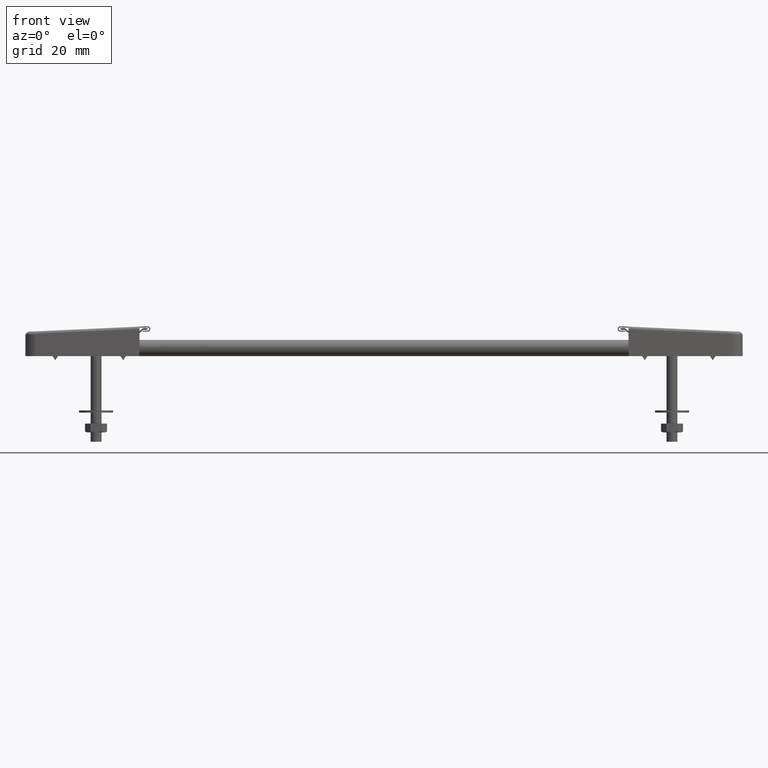
[diagram: clean part render]
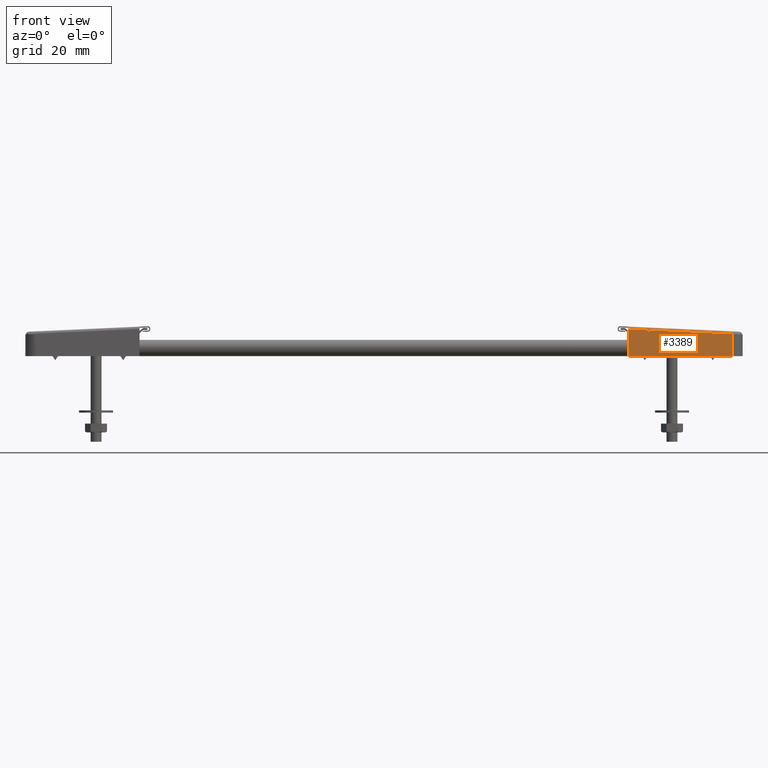
[diagram: same view with one face highlighted and labeled with its STEP entity id]
A machine part, front view. The second image highlights one B-rep face of the part: STEP entity #3389.
In plain terms, the highlighted face is a freeform B-spline surface patch.
Its self-contained STEP definition (entity closure, byte-faithful):
#3003=CARTESIAN_POINT('',(128.094592598178590,-14.698881373630501,8.145223414804848));
#3004=VERTEX_POINT('',#3003);
#3052=CARTESIAN_POINT('',(90.0,-15.599999999999749,9.865849773711291));
#3053=VERTEX_POINT('',#3052);
#3054=CARTESIAN_POINT('',(128.094592598178590,-14.698881373630501,8.145223414804848));
#3055=CARTESIAN_POINT('',(90.0,-15.599999999999749,9.865849773711291));
#3056=QUASI_UNIFORM_CURVE('',1,(#3054,#3055),.UNSPECIFIED.,.F.,.U.);
#3057=EDGE_CURVE('',#3004,#3053,#3056,.T.);
#3144=CARTESIAN_POINT('',(128.094592598178590,-14.698881373630501,0.0));
#3145=VERTEX_POINT('',#3144);
#3146=CARTESIAN_POINT('',(128.094592598178590,-14.698881373630501,0.0));
#3147=CARTESIAN_POINT('',(128.094592598178590,-14.698881373630501,8.145223414804848));
#3148=QUASI_UNIFORM_CURVE('',1,(#3146,#3147),.UNSPECIFIED.,.F.,.U.);
#3149=EDGE_CURVE('',#3145,#3004,#3148,.T.);
#3368=CARTESIAN_POINT('',(129.997413848575090,-14.653870584580430,-0.492799141827202));
#3369=CARTESIAN_POINT('',(88.097174321904902,-15.645010893785949,-0.492799141827202));
#3370=CARTESIAN_POINT('',(129.997413848575090,-14.653870584580430,10.358648474500640));
#3371=CARTESIAN_POINT('',(88.097174321904902,-15.645010893785949,10.358648474500640));
#3372=B_SPLINE_SURFACE_WITH_KNOTS('',1,1,((#3368,#3370),(#3369,#3371)),.UNSPECIFIED.,.F.,.F.,.U.,(2,2),(2,2),(0.0,41.911960482717461),(0.0,10.851447616327841),.UNSPECIFIED.);
#3373=ORIENTED_EDGE('',*,*,#3149,.T.);
#3374=ORIENTED_EDGE('',*,*,#3057,.T.);
#3375=CARTESIAN_POINT('',(90.0,-15.599999999999749,0.0));
#3376=VERTEX_POINT('',#3375);
#3377=CARTESIAN_POINT('',(90.0,-15.599999999999749,9.865849773711291));
#3378=CARTESIAN_POINT('',(90.0,-15.599999999999749,0.0));
#3379=QUASI_UNIFORM_CURVE('',1,(#3377,#3378),.UNSPECIFIED.,.F.,.U.);
#3380=EDGE_CURVE('',#3053,#3376,#3379,.T.);
#3381=ORIENTED_EDGE('',*,*,#3380,.T.);
#3382=CARTESIAN_POINT('',(90.0,-15.599999999999749,0.0));
#3383=CARTESIAN_POINT('',(128.094592598178590,-14.698881373630501,0.0));
#3384=QUASI_UNIFORM_CURVE('',1,(#3382,#3383),.UNSPECIFIED.,.F.,.U.);
#3385=EDGE_CURVE('',#3376,#3145,#3384,.T.);
#3386=ORIENTED_EDGE('',*,*,#3385,.T.);
#3387=EDGE_LOOP('',(#3373,#3374,#3381,#3386));
#3388=FACE_OUTER_BOUND('',#3387,.T.);
#3389=ADVANCED_FACE('',(#3388),#3372,.F.);